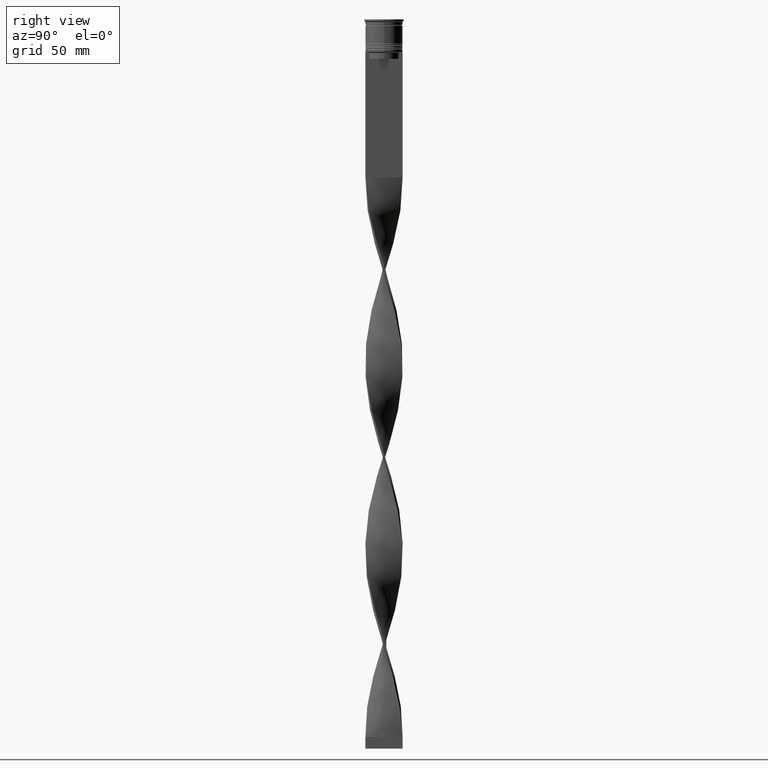
[diagram: clean part render]
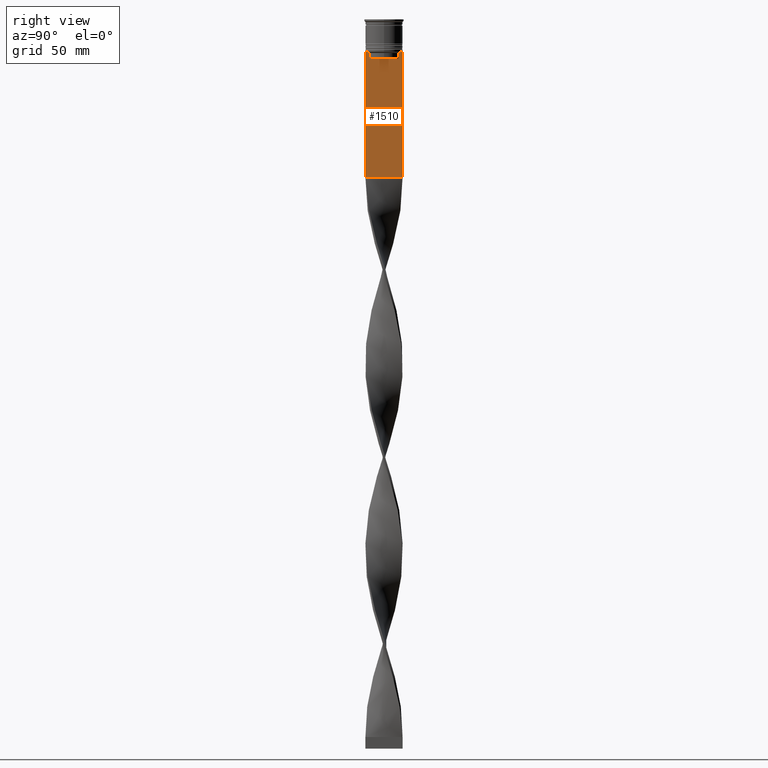
[diagram: same view with one face highlighted and labeled with its STEP entity id]
A machine part, right view. The second image highlights one B-rep face of the part: STEP entity #1510.
In plain terms, the highlighted planar face has unit normal (-1, 0, 0).
Its self-contained STEP definition (entity closure, byte-faithful):
#58 = ORIENTED_EDGE ( 'NONE', *, *, #1036, .T. ) ;
#60 = CARTESIAN_POINT ( 'NONE',  ( 0.5000000000000001110, 6.380438856379708312, 0.000000000000000000 ) ) ;
#95 = AXIS2_PLACEMENT_3D ( 'NONE', #2941, #3558, #1644 ) ;
#208 = EDGE_CURVE ( 'NONE', #3049, #2315, #2499, .T. ) ;
#249 = CARTESIAN_POINT ( 'NONE',  ( 0.5000000000000001110, 6.380438856379708312, -17.00000000000000000 ) ) ;
#261 = EDGE_CURVE ( 'NONE', #2747, #3004, #1084, .T. ) ;
#270 = CARTESIAN_POINT ( 'NONE',  ( 0.5000000000000001110, -8.000000000000003553, -14.00000000000000178 ) ) ;
#357 = VECTOR ( 'NONE', #3245, 1000.000000000000000 ) ;
#416 = CARTESIAN_POINT ( 'NONE',  ( 0.5000000000000001110, -8.000000000000003553, -14.00000000000000178 ) ) ;
#513 = LINE ( 'NONE', #1144, #2597 ) ;
#543 = CARTESIAN_POINT ( 'NONE',  ( 0.5000000000000001110, -8.000000000000003553, 2.031219541881394530 ) ) ;
#559 = EDGE_LOOP ( 'NONE', ( #3300, #2233, #1833, #2872, #2389, #2158, #58, #2712, #3396, #3037, #2122, #3646 ) ) ;
#645 = EDGE_CURVE ( 'NONE', #2717, #668, #513, .T. ) ;
#668 = VERTEX_POINT ( 'NONE', #942 ) ;
#681 = LINE ( 'NONE', #1047, #1604 ) ;
#682 = FACE_OUTER_BOUND ( 'NONE', #559, .T. ) ;
#713 = CARTESIAN_POINT ( 'NONE',  ( 0.5000000000000001110, -8.000000000000003553, -14.00000000000000178 ) ) ;
#879 = VECTOR ( 'NONE', #1876, 1000.000000000000000 ) ;
#928 = VERTEX_POINT ( 'NONE', #1345 ) ;
#942 = CARTESIAN_POINT ( 'NONE',  ( 0.5000000000000001110, 7.999999999999996447, -68.00000000000000000 ) ) ;
#973 = CARTESIAN_POINT ( 'NONE',  ( 0.5000000000000001110, -6.881860213634098500, -14.00000000000000178 ) ) ;
#1006 = CARTESIAN_POINT ( 'NONE',  ( 0.5000000000000001110, 6.399999999999999467, -17.00000000000000000 ) ) ;
#1007 = EDGE_CURVE ( 'NONE', #1462, #3400, #2910, .T. ) ;
#1019 = CARTESIAN_POINT ( 'NONE',  ( 0.5000000000000001110, -6.380438856379708312, -17.00000000000000000 ) ) ;
#1036 = EDGE_CURVE ( 'NONE', #3326, #1462, #2611, .T. ) ;
#1047 = CARTESIAN_POINT ( 'NONE',  ( 0.5000000000000001110, 7.999999999999996447, 2.031219541881394530 ) ) ;
#1084 = LINE ( 'NONE', #1696, #2392 ) ;
#1114 = VERTEX_POINT ( 'NONE', #2423 ) ;
#1144 = CARTESIAN_POINT ( 'NONE',  ( 0.5000000000000001110, -8.000000000000003553, -68.00000000000000000 ) ) ;
#1190 = CARTESIAN_POINT ( 'NONE',  ( 0.5000000000000001110, 6.380438856379708312, -14.50000000000000000 ) ) ;
#1345 = CARTESIAN_POINT ( 'NONE',  ( 0.5000000000000001110, 7.999999999999996447, -14.00000000000000178 ) ) ;
#1462 = VERTEX_POINT ( 'NONE', #2602 ) ;
#1510 = ADVANCED_FACE ( 'NONE', ( #682 ), #2269, .F. ) ;
#1599 = DIRECTION ( 'NONE',  ( 0.000000000000000000, -1.000000000000000000, 0.000000000000000000 ) ) ;
#1604 = VECTOR ( 'NONE', #3197, 1000.000000000000000 ) ;
#1644 = DIRECTION ( 'NONE',  ( 0.000000000000000000, 0.000000000000000000, 1.000000000000000000 ) ) ;
#1671 = VERTEX_POINT ( 'NONE', #3066 ) ;
#1696 = CARTESIAN_POINT ( 'NONE',  ( 0.5000000000000001110, -6.380438856379708312, 0.000000000000000000 ) ) ;
#1708 = EDGE_CURVE ( 'NONE', #928, #1114, #1746, .T. ) ;
#1746 = LINE ( 'NONE', #3046, #4012 ) ;
#1793 = CARTESIAN_POINT ( 'NONE',  ( 0.5000000000000001110, -6.380438856379708312, -14.50000000000000000 ) ) ;
#1833 = ORIENTED_EDGE ( 'NONE', *, *, #208, .T. ) ;
#1876 = DIRECTION ( 'NONE',  ( 0.000000000000000000, 0.000000000000000000, -1.000000000000000000 ) ) ;
#1894 = CARTESIAN_POINT ( 'NONE',  ( 0.5000000000000001110, -6.714736947305993908, -14.16668390685738821 ) ) ;
#1897 = EDGE_CURVE ( 'NONE', #1671, #3049, #3680, .T. ) ;
#1966 = DIRECTION ( 'NONE',  ( 0.000000000000000000, -1.000000000000000000, 0.000000000000000000 ) ) ;
#2085 = VECTOR ( 'NONE', #4054, 1000.000000000000000 ) ;
#2122 = ORIENTED_EDGE ( 'NONE', *, *, #3385, .F. ) ;
#2158 = ORIENTED_EDGE ( 'NONE', *, *, #3565, .T. ) ;
#2233 = ORIENTED_EDGE ( 'NONE', *, *, #1897, .T. ) ;
#2236 = CARTESIAN_POINT ( 'NONE',  ( 0.5000000000000001110, -8.000000000000003553, -14.00000000000000178 ) ) ;
#2249 = EDGE_CURVE ( 'NONE', #3400, #2717, #3415, .T. ) ;
#2269 = PLANE ( 'NONE',  #95 ) ;
#2315 = VERTEX_POINT ( 'NONE', #249 ) ;
#2389 = ORIENTED_EDGE ( 'NONE', *, *, #261, .T. ) ;
#2392 = VECTOR ( 'NONE', #3922, 1000.000000000000000 ) ;
#2423 = CARTESIAN_POINT ( 'NONE',  ( 0.5000000000000001110, 7.884161337770806632, -14.00000000000000178 ) ) ;
#2499 = LINE ( 'NONE', #60, #879 ) ;
#2519 = CARTESIAN_POINT ( 'NONE',  ( 0.5000000000000001110, 6.881860213634098500, -14.00000000000000178 ) ) ;
#2579 = EDGE_CURVE ( 'NONE', #1114, #1671, #3195, .T. ) ;
#2596 = LINE ( 'NONE', #1006, #3499 ) ;
#2597 = VECTOR ( 'NONE', #3695, 1000.000000000000000 ) ;
#2602 = CARTESIAN_POINT ( 'NONE',  ( 0.5000000000000001110, -7.884161337770806632, -14.00000000000000178 ) ) ;
#2611 = LINE ( 'NONE', #416, #357 ) ;
#2712 = ORIENTED_EDGE ( 'NONE', *, *, #1007, .T. ) ;
#2717 = VERTEX_POINT ( 'NONE', #3546 ) ;
#2747 = VERTEX_POINT ( 'NONE', #1019 ) ;
#2793 = CARTESIAN_POINT ( 'NONE',  ( 0.5000000000000001110, 6.714736947114692711, -14.16668390704818847 ) ) ;
#2859 = CARTESIAN_POINT ( 'NONE',  ( 0.5000000000000001110, 6.547597841304911626, -14.33335192459222718 ) ) ;
#2872 = ORIENTED_EDGE ( 'NONE', *, *, #3324, .T. ) ;
#2875 = CARTESIAN_POINT ( 'NONE',  ( 0.5000000000000001110, -6.380438856379708312, -14.50000000000000000 ) ) ;
#2910 = LINE ( 'NONE', #713, #3948 ) ;
#2941 = CARTESIAN_POINT ( 'NONE',  ( 0.5000000000000001110, -8.000000000000003553, 2.031219541881394530 ) ) ;
#3004 = VERTEX_POINT ( 'NONE', #1793 ) ;
#3037 = ORIENTED_EDGE ( 'NONE', *, *, #645, .T. ) ;
#3046 = CARTESIAN_POINT ( 'NONE',  ( 0.5000000000000001110, -8.000000000000003553, -14.00000000000000178 ) ) ;
#3049 = VERTEX_POINT ( 'NONE', #3444 ) ;
#3066 = CARTESIAN_POINT ( 'NONE',  ( 0.5000000000000001110, 6.881860213634098500, -14.00000000000000178 ) ) ;
#3076 = DIRECTION ( 'NONE',  ( 0.000000000000000000, 0.000000000000000000, -1.000000000000000000 ) ) ;
#3195 = LINE ( 'NONE', #270, #2085 ) ;
#3197 = DIRECTION ( 'NONE',  ( 0.000000000000000000, 0.000000000000000000, -1.000000000000000000 ) ) ;
#3233 = CARTESIAN_POINT ( 'NONE',  ( 0.5000000000000001110, -6.881860213634098500, -14.00000000000000178 ) ) ;
#3245 = DIRECTION ( 'NONE',  ( 0.000000000000000000, -1.000000000000000000, 0.000000000000000000 ) ) ;
#3280 = VECTOR ( 'NONE', #3076, 1000.000000000000000 ) ;
#3300 = ORIENTED_EDGE ( 'NONE', *, *, #2579, .T. ) ;
#3324 = EDGE_CURVE ( 'NONE', #2315, #2747, #2596, .T. ) ;
#3326 = VERTEX_POINT ( 'NONE', #973 ) ;
#3385 = EDGE_CURVE ( 'NONE', #928, #668, #681, .T. ) ;
#3396 = ORIENTED_EDGE ( 'NONE', *, *, #2249, .T. ) ;
#3400 = VERTEX_POINT ( 'NONE', #2236 ) ;
#3415 = LINE ( 'NONE', #543, #3280 ) ;
#3444 = CARTESIAN_POINT ( 'NONE',  ( 0.5000000000000001110, 6.380438856379708312, -14.50000000000000000 ) ) ;
#3499 = VECTOR ( 'NONE', #1599, 1000.000000000000000 ) ;
#3512 = CARTESIAN_POINT ( 'NONE',  ( 0.5000000000000001110, -6.547597841511247019, -14.33335192438652150 ) ) ;
#3546 = CARTESIAN_POINT ( 'NONE',  ( 0.5000000000000001110, -8.000000000000003553, -68.00000000000000000 ) ) ;
#3558 = DIRECTION ( 'NONE',  ( -1.000000000000000000, 0.000000000000000000, 0.000000000000000000 ) ) ;
#3565 = EDGE_CURVE ( 'NONE', #3004, #3326, #3764, .T. ) ;
#3646 = ORIENTED_EDGE ( 'NONE', *, *, #1708, .T. ) ;
#3680 = B_SPLINE_CURVE_WITH_KNOTS ( 'NONE', 3,
 ( #2519, #2793, #2859, #1190 ),
 .UNSPECIFIED., .F., .F.,
 ( 4, 4 ),
 ( 0.01172465562756038263, 0.01243276816391822651 ),
 .UNSPECIFIED. ) ;
#3695 = DIRECTION ( 'NONE',  ( 0.000000000000000000, 1.000000000000000000, 0.000000000000000000 ) ) ;
#3764 = B_SPLINE_CURVE_WITH_KNOTS ( 'NONE', 3,
 ( #2875, #3512, #1894, #3233 ),
 .UNSPECIFIED., .F., .F.,
 ( 4, 4 ),
 ( 0.02996184199614751464, 0.03067452609193705923 ),
 .UNSPECIFIED. ) ;
#3922 = DIRECTION ( 'NONE',  ( -0.000000000000000000, -0.000000000000000000, 1.000000000000000000 ) ) ;
#3948 = VECTOR ( 'NONE', #1966, 1000.000000000000000 ) ;
#4007 = DIRECTION ( 'NONE',  ( 0.000000000000000000, -1.000000000000000000, 0.000000000000000000 ) ) ;
#4012 = VECTOR ( 'NONE', #4007, 1000.000000000000000 ) ;
#4054 = DIRECTION ( 'NONE',  ( 0.000000000000000000, -1.000000000000000000, 0.000000000000000000 ) ) ;